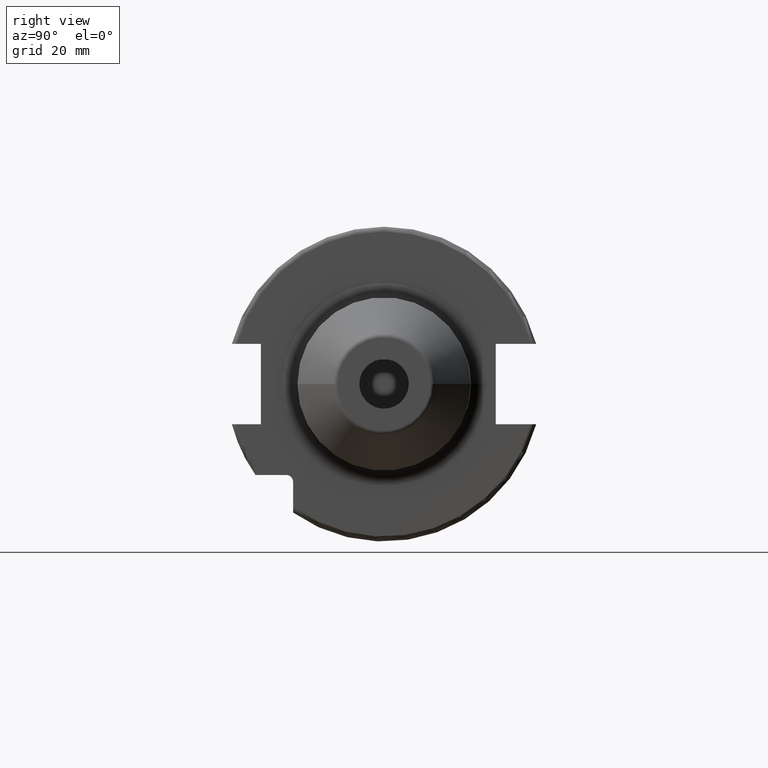
[diagram: clean part render]
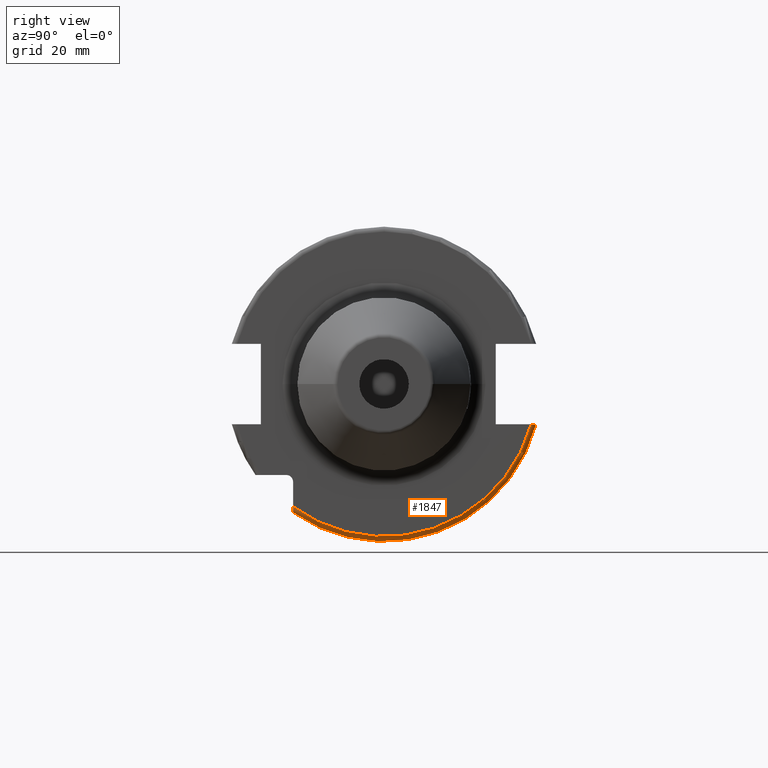
[diagram: same view with one face highlighted and labeled with its STEP entity id]
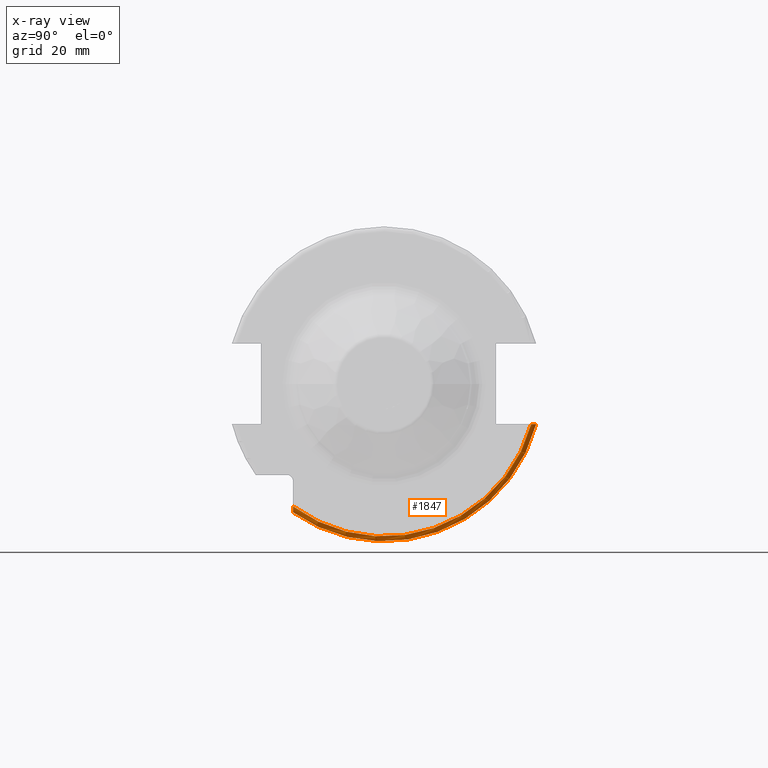
[diagram: x-ray of the same camera — body ghosted, the highlighted face saturated]
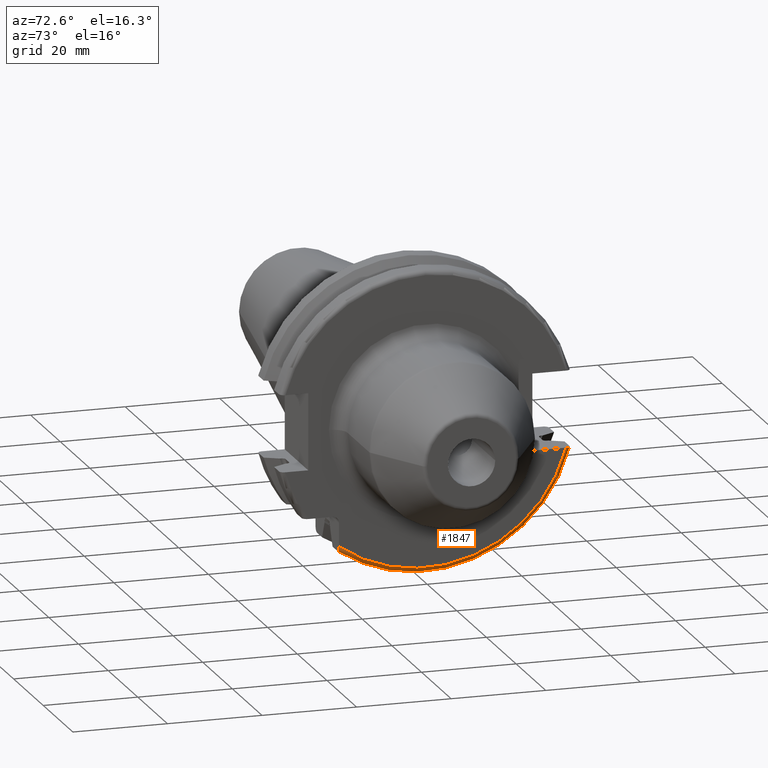
[diagram: same view with one face highlighted and labeled with its STEP entity id]
A machine part, right view. The second image highlights one B-rep face of the part: STEP entity #1847.
The next image is the same camera in x-ray: the body ghosted, the highlighted face saturated — about 0% of this face is hidden behind the body in this view.
A second angle (auxiliary view) of the same face is appended — the face is thin or edge-on in the first view.
In plain terms, the highlighted toroidal blend (fillet) surface has major radius 30.7625 mm and minor (blend) radius 1 mm.
Its self-contained STEP definition (entity closure, byte-faithful):
#172=CARTESIAN_POINT('',(1.805E1,3.071231684927E1,-8.1E0));
#173=CARTESIAN_POINT('',(1.812702529647E1,3.071231684927E1,-8.1E0));
#174=CARTESIAN_POINT('',(1.827656518037E1,3.069444719907E1,-8.1E0));
#175=CARTESIAN_POINT('',(1.849273698584E1,3.061544862934E1,-8.1E0));
#176=CARTESIAN_POINT('',(1.868460186607E1,3.048863686818E1,-8.1E0));
#177=CARTESIAN_POINT('',(1.884263679922E1,3.032251203229E1,-8.1E0));
#178=CARTESIAN_POINT('',(1.896052984725E1,3.012566774399E1,-8.1E0));
#179=CARTESIAN_POINT('',(1.903334281973E1,2.990707436768E1,-8.1E0));
#180=CARTESIAN_POINT('',(1.905E1,2.975515277820E1,-8.1E0));
#181=CARTESIAN_POINT('',(1.905E1,2.967695075728E1,-8.1E0));
#183=CARTESIAN_POINT('',(1.905E1,-1.835E1,-2.469025933946E1));
#184=CARTESIAN_POINT('',(1.905E1,-1.835E1,-2.477827489148E1));
#185=CARTESIAN_POINT('',(1.903550352933E1,-1.835E1,-2.495194722121E1));
#186=CARTESIAN_POINT('',(1.896629632127E1,-1.835E1,-2.521302960336E1));
#187=CARTESIAN_POINT('',(1.884964259244E1,-1.835E1,-2.545175760021E1));
#188=CARTESIAN_POINT('',(1.869337393206E1,-1.835E1,-2.565125079223E1));
#189=CARTESIAN_POINT('',(1.850440420446E1,-1.835E1,-2.580344847600E1));
#190=CARTESIAN_POINT('',(1.828893233655E1,-1.835E1,-2.590127687802E1));
#191=CARTESIAN_POINT('',(1.813210111876E1,-1.835E1,-2.592554543785E1));
#192=CARTESIAN_POINT('',(1.805E1,-1.835E1,-2.592554543785E1));
#194=CARTESIAN_POINT('',(1.905E1,0.E0,0.E0));
#195=DIRECTION('',(-1.E0,0.E0,0.E0));
#196=DIRECTION('',(0.E0,9.647119303464E-1,-2.633075985372E-1));
#197=AXIS2_PLACEMENT_3D('',#194,#195,#196);
#615=CARTESIAN_POINT('',(1.805E1,0.E0,0.E0));
#616=DIRECTION('',(-1.E0,0.E0,0.E0));
#617=DIRECTION('',(0.E0,9.669363825036E-1,-2.550177095632E-1));
#618=AXIS2_PLACEMENT_3D('',#615,#616,#617);
#1474=CARTESIAN_POINT('',(1.905E1,2.967695075728E1,-8.1E0));
#1475=VERTEX_POINT('',#1474);
#1514=CARTESIAN_POINT('',(1.805E1,3.071231684927E1,-8.1E0));
#1515=VERTEX_POINT('',#1514);
#1529=CARTESIAN_POINT('',(1.905E1,-1.835E1,-2.469025933946E1));
#1530=VERTEX_POINT('',#1529);
#1531=CARTESIAN_POINT('',(1.805E1,-1.835E1,-2.592554543785E1));
#1532=VERTEX_POINT('',#1531);
#1834=CARTESIAN_POINT('',(1.805E1,0.E0,0.E0));
#1835=DIRECTION('',(1.E0,0.E0,0.E0));
#1836=DIRECTION('',(0.E0,-1.E0,0.E0));
#1837=AXIS2_PLACEMENT_3D('',#1834,#1835,#1836);
#1838=TOROIDAL_SURFACE('',#1837,3.07625E1,1.E0);
#1840=ORIENTED_EDGE('',*,*,#1839,.F.);
#1842=ORIENTED_EDGE('',*,*,#1841,.T.);
#1843=ORIENTED_EDGE('',*,*,#1805,.F.);
#1844=ORIENTED_EDGE('',*,*,#1788,.F.);
#1845=EDGE_LOOP('',(#1840,#1842,#1843,#1844));
#1846=FACE_OUTER_BOUND('',#1845,.F.);
#1847=ADVANCED_FACE('',(#1846),#1838,.T.);
#182=B_SPLINE_CURVE_WITH_KNOTS('',3,(#172,#173,#174,#175,#176,#177,#178,#179,
#180,#181),.UNSPECIFIED.,.F.,.F.,(4,1,1,1,1,1,1,4),(0.E0,1.428571428571E-1,
2.857142857143E-1,4.285714285714E-1,5.714285714286E-1,7.142857142857E-1,
8.571428571429E-1,1.E0),.UNSPECIFIED.);
#193=B_SPLINE_CURVE_WITH_KNOTS('',3,(#183,#184,#185,#186,#187,#188,#189,#190,
#191,#192),.UNSPECIFIED.,.F.,.F.,(4,1,1,1,1,1,1,4),(0.E0,1.428571428571E-1,
2.857142857143E-1,4.285714285714E-1,5.714285714286E-1,7.142857142857E-1,
8.571428571429E-1,1.E0),.UNSPECIFIED.);
#198=CIRCLE('',#197,3.07625E1);
#619=CIRCLE('',#618,3.17625E1);
#1788=EDGE_CURVE('',#1475,#1530,#198,.T.);
#1805=EDGE_CURVE('',#1530,#1532,#193,.T.);
#1839=EDGE_CURVE('',#1515,#1475,#182,.T.);
#1841=EDGE_CURVE('',#1515,#1532,#619,.T.);